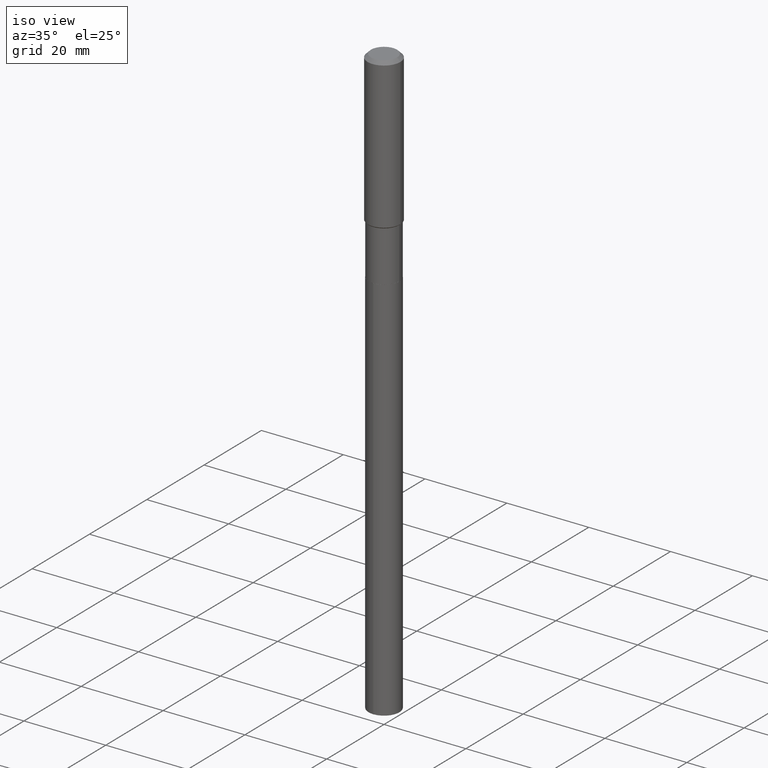
[diagram: clean part render]
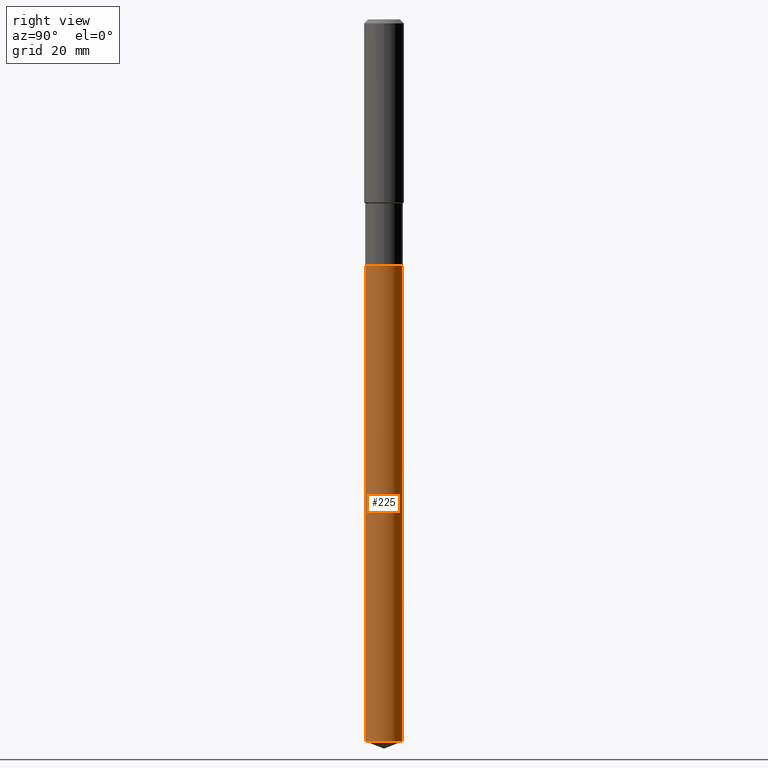
[diagram: tour spotlight — one face highlighted and labeled with its STEP entity id]
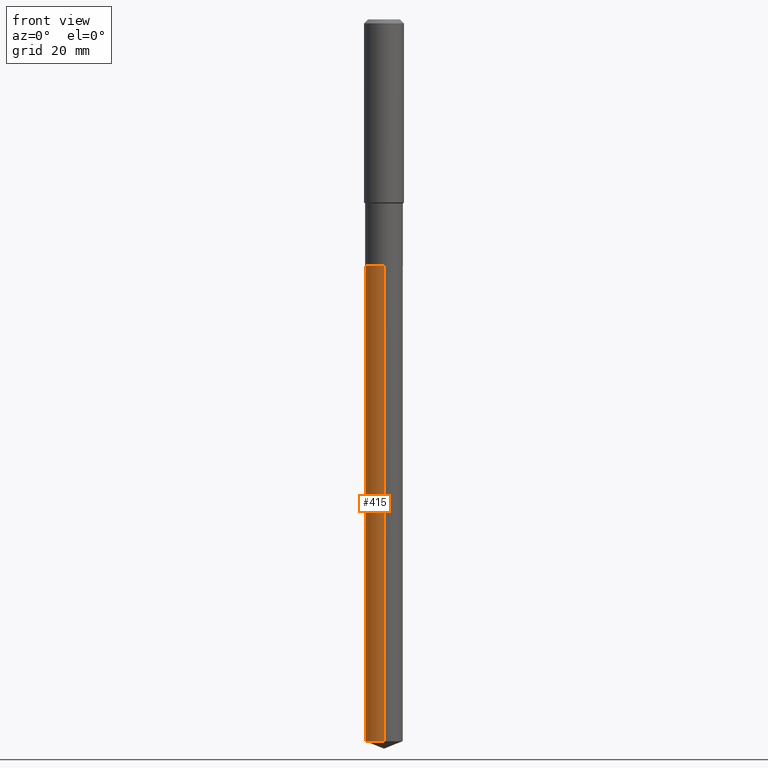
[diagram: tour spotlight — one face highlighted and labeled with its STEP entity id]
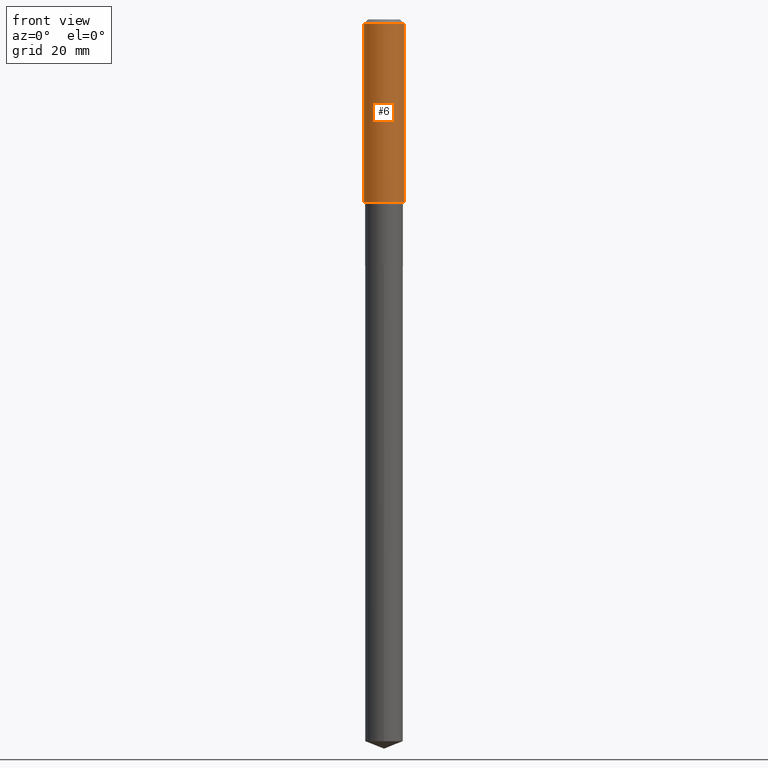
[diagram: tour spotlight — one face highlighted and labeled with its STEP entity id]
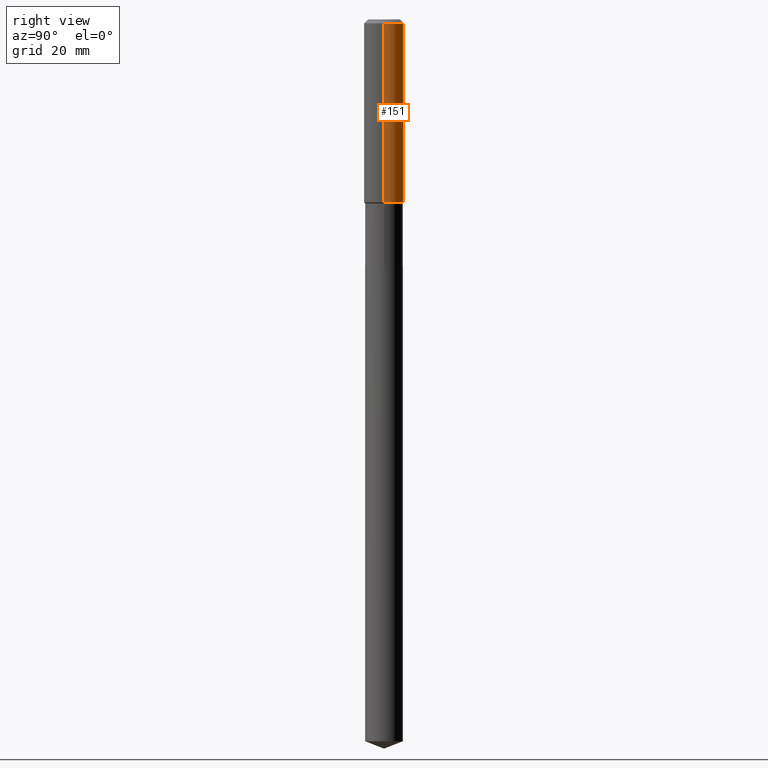
[diagram: tour spotlight — one face highlighted and labeled with its STEP entity id]
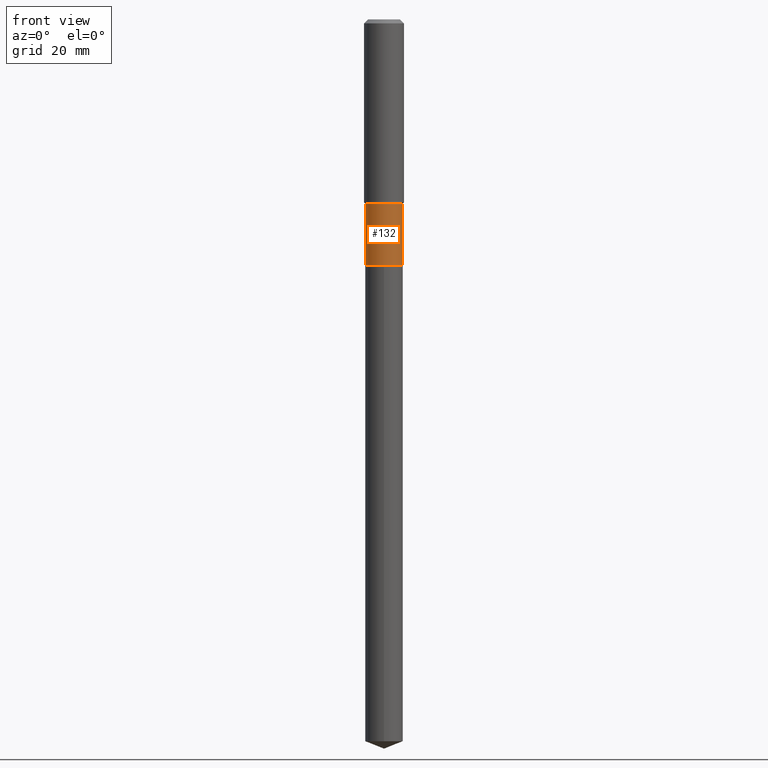
[diagram: tour spotlight — one face highlighted and labeled with its STEP entity id]
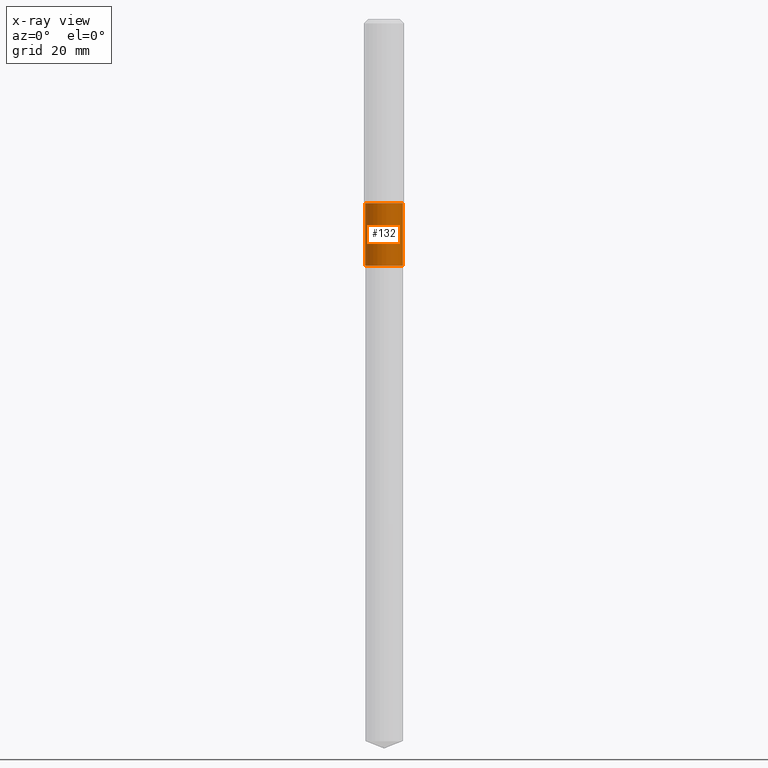
[diagram: x-ray of the same camera — body ghosted, this tour face saturated]
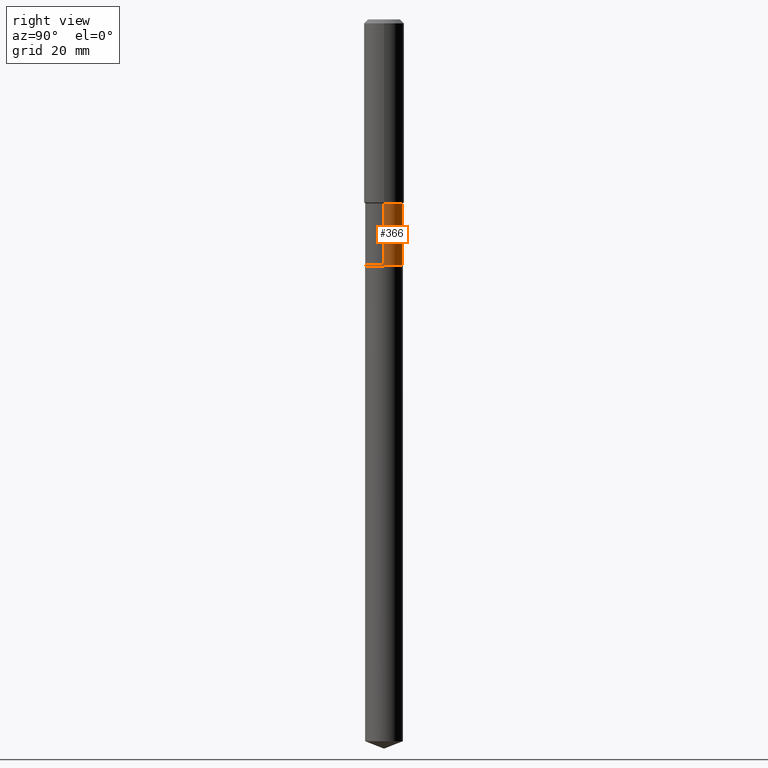
[diagram: tour spotlight — one face highlighted and labeled with its STEP entity id]
A machine part: a face-by-face anatomy tour. The part has 17 B-rep faces; the first image is the clean iso view, then the 6 largest visible faces are spotlighted one at a time (largest first), each with its STEP entity span.

Face 1 — right view, entity #225. In plain terms, the highlighted cylindrical surface (edge-blend (fillet) strip) has radius 3.7706 mm, axis along (-0, 0, 1).
Definition (entity closure, byte-faithful):
#5 = LINE ( 'NONE', #162, #69 ) ;
#16 = EDGE_CURVE ( 'NONE', #54, #122, #182, .T. ) ;
#38 = AXIS2_PLACEMENT_3D ( 'NONE', #63, #405, #412 ) ;
#45 = CARTESIAN_POINT ( 'NONE',  ( 1.054800691236008147E-15, 0.1484499999999931985, -1.941400000000000681 ) ) ;
#54 = VERTEX_POINT ( 'NONE', #118 ) ;
#63 = CARTESIAN_POINT ( 'NONE',  ( 4.747633140327824663E-29, -6.778361871230083058E-15, -1.941400000000000237 ) ) ;
#69 = VECTOR ( 'NONE', #409, 39.37007874015748143 ) ;
#75 = CARTESIAN_POINT ( 'NONE',  ( 1.054800691236008147E-15, 0.1484499999999801811, -5.689523989894962774 ) ) ;
#94 = EDGE_CURVE ( 'NONE', #122, #330, #5, .T. ) ;
#104 = EDGE_CURVE ( 'NONE', #482, #330, #354, .T. ) ;
#118 = CARTESIAN_POINT ( 'NONE',  ( -1.036620809502387253E-15, -0.1484500000000198716, -5.689523989894962774 ) ) ;
#120 = CARTESIAN_POINT ( 'NONE',  ( -1.036620809502478564E-15, -0.1484500000000067710, -1.941399999999999570 ) ) ;
#122 = VERTEX_POINT ( 'NONE', #75 ) ;
#127 = CARTESIAN_POINT ( 'NONE',  ( -1.036620809502478564E-15, -0.1484500000000067710, -1.941399999999999570 ) ) ;
#162 = CARTESIAN_POINT ( 'NONE',  ( 1.054800691235916048E-15, 0.1484499999999931985, -1.941400000000000681 ) ) ;
#164 = ORIENTED_EDGE ( 'NONE', *, *, #429, .F. ) ;
#167 = DIRECTION ( 'NONE',  ( -2.445564221112672413E-29, 3.491344699236233540E-15, 1.000000000000000000 ) ) ;
#182 = CIRCLE ( 'NONE', #230, 0.1484499999999999986 ) ;
#219 = DIRECTION ( 'NONE',  ( -6.982962677686265133E-15, -1.000000000000000000, 3.680495781292372402E-15 ) ) ;
#225 = ADVANCED_FACE ( 'NONE', ( #446 ), #307, .T. ) ;
#230 = AXIS2_PLACEMENT_3D ( 'NONE', #457, #167, #316 ) ;
#237 = ORIENTED_EDGE ( 'NONE', *, *, #94, .T. ) ;
#240 = LINE ( 'NONE', #120, #276 ) ;
#241 = AXIS2_PLACEMENT_3D ( 'NONE', #479, #333, #219 ) ;
#258 = ORIENTED_EDGE ( 'NONE', *, *, #16, .T. ) ;
#276 = VECTOR ( 'NONE', #398, 39.37007874015748143 ) ;
#307 = CYLINDRICAL_SURFACE ( 'NONE', #38, 0.1484499999999999986 ) ;
#316 = DIRECTION ( 'NONE',  ( -6.982962677686265133E-15, -1.000000000000000000, 0.000000000000000000 ) ) ;
#328 = EDGE_LOOP ( 'NONE', ( #258, #237, #336, #164 ) ) ;
#330 = VERTEX_POINT ( 'NONE', #45 ) ;
#333 = DIRECTION ( 'NONE',  ( -2.445564221112672413E-29, 3.491344699236233540E-15, 1.000000000000000000 ) ) ;
#336 = ORIENTED_EDGE ( 'NONE', *, *, #104, .F. ) ;
#354 = CIRCLE ( 'NONE', #241, 0.1484499999999999986 ) ;
#398 = DIRECTION ( 'NONE',  ( -2.445564221112672413E-29, 3.491344699236233540E-15, 1.000000000000000000 ) ) ;
#405 = DIRECTION ( 'NONE',  ( -2.445564221112672413E-29, 3.491344699236233540E-15, 1.000000000000000000 ) ) ;
#409 = DIRECTION ( 'NONE',  ( -2.445564221112672413E-29, 3.491344699236233540E-15, 1.000000000000000000 ) ) ;
#412 = DIRECTION ( 'NONE',  ( -6.982962677686265133E-15, -1.000000000000000000, 3.680495781292372402E-15 ) ) ;
#429 = EDGE_CURVE ( 'NONE', #54, #482, #240, .T. ) ;
#446 = FACE_OUTER_BOUND ( 'NONE', #328, .T. ) ;
#457 = CARTESIAN_POINT ( 'NONE',  ( 1.391391106630902087E-28, -1.986435469543002324E-14, -5.689523989894962774 ) ) ;
#479 = CARTESIAN_POINT ( 'NONE',  ( 4.747633140327824663E-29, -6.778361871230083058E-15, -1.941400000000000237 ) ) ;
#482 = VERTEX_POINT ( 'NONE', #127 ) ;

Face 2 — front view, entity #415. In plain terms, the highlighted cylindrical surface (edge-blend (fillet) strip) has radius 3.7706 mm, axis along (-0, 0, 1).
Definition (entity closure, byte-faithful):
#3 = ORIENTED_EDGE ( 'NONE', *, *, #459, .F. ) ;
#5 = LINE ( 'NONE', #162, #69 ) ;
#19 = ORIENTED_EDGE ( 'NONE', *, *, #94, .F. ) ;
#29 = AXIS2_PLACEMENT_3D ( 'NONE', #263, #255, #484 ) ;
#45 = CARTESIAN_POINT ( 'NONE',  ( 1.054800691236008147E-15, 0.1484499999999931985, -1.941400000000000681 ) ) ;
#54 = VERTEX_POINT ( 'NONE', #118 ) ;
#69 = VECTOR ( 'NONE', #409, 39.37007874015748143 ) ;
#75 = CARTESIAN_POINT ( 'NONE',  ( 1.054800691236008147E-15, 0.1484499999999801811, -5.689523989894962774 ) ) ;
#87 = DIRECTION ( 'NONE',  ( -6.982962677686265133E-15, -1.000000000000000000, 3.680495781292372402E-15 ) ) ;
#94 = EDGE_CURVE ( 'NONE', #122, #330, #5, .T. ) ;
#110 = CARTESIAN_POINT ( 'NONE',  ( 4.747633140327824663E-29, -6.778361871230083058E-15, -1.941400000000000237 ) ) ;
#118 = CARTESIAN_POINT ( 'NONE',  ( -1.036620809502387253E-15, -0.1484500000000198716, -5.689523989894962774 ) ) ;
#120 = CARTESIAN_POINT ( 'NONE',  ( -1.036620809502478564E-15, -0.1484500000000067710, -1.941399999999999570 ) ) ;
#122 = VERTEX_POINT ( 'NONE', #75 ) ;
#127 = CARTESIAN_POINT ( 'NONE',  ( -1.036620809502478564E-15, -0.1484500000000067710, -1.941399999999999570 ) ) ;
#162 = CARTESIAN_POINT ( 'NONE',  ( 1.054800691235916048E-15, 0.1484499999999931985, -1.941400000000000681 ) ) ;
#189 = EDGE_CURVE ( 'NONE', #122, #54, #308, .T. ) ;
#218 = DIRECTION ( 'NONE',  ( -2.445564221112672413E-29, 3.491344699236233540E-15, 1.000000000000000000 ) ) ;
#229 = DIRECTION ( 'NONE',  ( -2.445564221112672413E-29, 3.491344699236233540E-15, 1.000000000000000000 ) ) ;
#240 = LINE ( 'NONE', #120, #276 ) ;
#250 = ORIENTED_EDGE ( 'NONE', *, *, #189, .T. ) ;
#251 = DIRECTION ( 'NONE',  ( -6.982962677686265133E-15, -1.000000000000000000, 3.680495781292372402E-15 ) ) ;
#252 = ORIENTED_EDGE ( 'NONE', *, *, #429, .T. ) ;
#255 = DIRECTION ( 'NONE',  ( -2.445564221112672413E-29, 3.491344699236233540E-15, 1.000000000000000000 ) ) ;
#263 = CARTESIAN_POINT ( 'NONE',  ( 1.391391106630902087E-28, -1.986435469543002324E-14, -5.689523989894962774 ) ) ;
#266 = CIRCLE ( 'NONE', #334, 0.1484499999999999986 ) ;
#276 = VECTOR ( 'NONE', #398, 39.37007874015748143 ) ;
#284 = FACE_OUTER_BOUND ( 'NONE', #287, .T. ) ;
#287 = EDGE_LOOP ( 'NONE', ( #19, #250, #252, #3 ) ) ;
#308 = CIRCLE ( 'NONE', #29, 0.1484499999999999986 ) ;
#330 = VERTEX_POINT ( 'NONE', #45 ) ;
#334 = AXIS2_PLACEMENT_3D ( 'NONE', #434, #218, #251 ) ;
#358 = CYLINDRICAL_SURFACE ( 'NONE', #372, 0.1484499999999999986 ) ;
#372 = AXIS2_PLACEMENT_3D ( 'NONE', #110, #229, #87 ) ;
#398 = DIRECTION ( 'NONE',  ( -2.445564221112672413E-29, 3.491344699236233540E-15, 1.000000000000000000 ) ) ;
#409 = DIRECTION ( 'NONE',  ( -2.445564221112672413E-29, 3.491344699236233540E-15, 1.000000000000000000 ) ) ;
#415 = ADVANCED_FACE ( 'NONE', ( #284 ), #358, .T. ) ;
#429 = EDGE_CURVE ( 'NONE', #54, #482, #240, .T. ) ;
#434 = CARTESIAN_POINT ( 'NONE',  ( 4.747633140327824663E-29, -6.778361871230083058E-15, -1.941400000000000237 ) ) ;
#459 = EDGE_CURVE ( 'NONE', #330, #482, #266, .T. ) ;
#482 = VERTEX_POINT ( 'NONE', #127 ) ;
#484 = DIRECTION ( 'NONE',  ( -6.982962677686265133E-15, -1.000000000000000000, 0.000000000000000000 ) ) ;

Face 3 — front view, entity #6. In plain terms, the highlighted cylindrical surface (edge-blend (fillet) strip) has radius 4.0005 mm, axis along (-0, 0, 1).
Definition (entity closure, byte-faithful):
#2 = CYLINDRICAL_SURFACE ( 'NONE', #128, 0.1575000000000000844 ) ;
#4 = CARTESIAN_POINT ( 'NONE',  ( 0.1575000000000000844, -1.099816621735587677E-15, 7.679978421878603638E-30 ) ) ;
#6 = ADVANCED_FACE ( 'NONE', ( #163 ), #2, .T. ) ;
#7 = ORIENTED_EDGE ( 'NONE', *, *, #42, .F. ) ;
#31 = DIRECTION ( 'NONE',  ( -2.445468806185136597E-29, 3.491481338843145583E-15, 1.000000000000000000 ) ) ;
#37 = DIRECTION ( 'NONE',  ( 1.000000000000000000, -6.982962677686267499E-15, 0.000000000000000000 ) ) ;
#39 = AXIS2_PLACEMENT_3D ( 'NONE', #487, #362, #361 ) ;
#40 = CARTESIAN_POINT ( 'NONE',  ( -0.1575000000000001676, -3.917182448392135652E-15, -1.442449999999999788 ) ) ;
#42 = EDGE_CURVE ( 'NONE', #370, #430, #159, .T. ) ;
#95 = VERTEX_POINT ( 'NONE', #184 ) ;
#98 = VECTOR ( 'NONE', #116, 39.37007874015748143 ) ;
#107 = CARTESIAN_POINT ( 'NONE',  ( 0.1575000000000000011, -1.209798283909146741E-15, -0.03150000000000019451 ) ) ;
#116 = DIRECTION ( 'NONE',  ( -2.445468806185136877E-29, 3.491481338843145188E-15, 1.000000000000000000 ) ) ;
#125 = DIRECTION ( 'NONE',  ( -2.445468806185136877E-29, 3.491481338843145188E-15, 1.000000000000000000 ) ) ;
#128 = AXIS2_PLACEMENT_3D ( 'NONE', #285, #390, #157 ) ;
#144 = CARTESIAN_POINT ( 'NONE',  ( 3.527466479481750238E-29, -5.036287257214294044E-15, -1.442449999999999788 ) ) ;
#157 = DIRECTION ( 'NONE',  ( 1.000000000000000000, -6.982962677686267499E-15, 4.876176775795936353E-29 ) ) ;
#159 = LINE ( 'NONE', #490, #98 ) ;
#163 = FACE_OUTER_BOUND ( 'NONE', #203, .T. ) ;
#184 = CARTESIAN_POINT ( 'NONE',  ( 0.1575000000000001676, -6.136103878949882313E-15, -1.442449999999999788 ) ) ;
#186 = ORIENTED_EDGE ( 'NONE', *, *, #344, .F. ) ;
#188 = VERTEX_POINT ( 'NONE', #107 ) ;
#195 = EDGE_CURVE ( 'NONE', #370, #95, #280, .T. ) ;
#203 = EDGE_LOOP ( 'NONE', ( #7, #277, #373, #186 ) ) ;
#207 = VECTOR ( 'NONE', #125, 39.37007874015748143 ) ;
#277 = ORIENTED_EDGE ( 'NONE', *, *, #195, .T. ) ;
#280 = CIRCLE ( 'NONE', #332, 0.1575000000000001676 ) ;
#282 = CARTESIAN_POINT ( 'NONE',  ( -0.1575000000000000011, -1.454029650871768556E-15, -0.03150000000000019451 ) ) ;
#285 = CARTESIAN_POINT ( 'NONE',  ( 0.000000000000000000, 0.000000000000000000, 0.000000000000000000 ) ) ;
#319 = EDGE_CURVE ( 'NONE', #95, #188, #453, .T. ) ;
#332 = AXIS2_PLACEMENT_3D ( 'NONE', #144, #31, #37 ) ;
#344 = EDGE_CURVE ( 'NONE', #430, #188, #355, .T. ) ;
#355 = CIRCLE ( 'NONE', #39, 0.1575000000000000011 ) ;
#361 = DIRECTION ( 'NONE',  ( 1.000000000000000000, -6.982962677686265922E-15, 0.000000000000000000 ) ) ;
#362 = DIRECTION ( 'NONE',  ( -2.445468806185136597E-29, 3.491481338843145583E-15, 1.000000000000000000 ) ) ;
#370 = VERTEX_POINT ( 'NONE', #40 ) ;
#373 = ORIENTED_EDGE ( 'NONE', *, *, #319, .T. ) ;
#390 = DIRECTION ( 'NONE',  ( -2.445468806185136597E-29, 3.491481338843145583E-15, 1.000000000000000000 ) ) ;
#430 = VERTEX_POINT ( 'NONE', #282 ) ;
#453 = LINE ( 'NONE', #4, #207 ) ;
#487 = CARTESIAN_POINT ( 'NONE',  ( 7.703226739483228723E-31, -1.099816621735597661E-16, -0.03150000000000019451 ) ) ;
#490 = CARTESIAN_POINT ( 'NONE',  ( -0.1575000000000000844, 1.119104808822158392E-15, -7.747322767151481189E-30 ) ) ;

Face 4 — right view, entity #151. In plain terms, the highlighted cylindrical surface (edge-blend (fillet) strip) has radius 4.0005 mm, axis along (-0, 0, 1).
Definition (entity closure, byte-faithful):
#4 = CARTESIAN_POINT ( 'NONE',  ( 0.1575000000000000844, -1.099816621735587677E-15, 7.679978421878603638E-30 ) ) ;
#13 = ORIENTED_EDGE ( 'NONE', *, *, #294, .F. ) ;
#40 = CARTESIAN_POINT ( 'NONE',  ( -0.1575000000000001676, -3.917182448392135652E-15, -1.442449999999999788 ) ) ;
#42 = EDGE_CURVE ( 'NONE', #370, #430, #159, .T. ) ;
#65 = FACE_OUTER_BOUND ( 'NONE', #335, .T. ) ;
#84 = ORIENTED_EDGE ( 'NONE', *, *, #319, .F. ) ;
#90 = AXIS2_PLACEMENT_3D ( 'NONE', #427, #272, #397 ) ;
#95 = VERTEX_POINT ( 'NONE', #184 ) ;
#98 = VECTOR ( 'NONE', #116, 39.37007874015748143 ) ;
#100 = ORIENTED_EDGE ( 'NONE', *, *, #42, .T. ) ;
#107 = CARTESIAN_POINT ( 'NONE',  ( 0.1575000000000000011, -1.209798283909146741E-15, -0.03150000000000019451 ) ) ;
#116 = DIRECTION ( 'NONE',  ( -2.445468806185136877E-29, 3.491481338843145188E-15, 1.000000000000000000 ) ) ;
#125 = DIRECTION ( 'NONE',  ( -2.445468806185136877E-29, 3.491481338843145188E-15, 1.000000000000000000 ) ) ;
#151 = ADVANCED_FACE ( 'NONE', ( #65 ), #380, .T. ) ;
#155 = CIRCLE ( 'NONE', #90, 0.1575000000000000011 ) ;
#159 = LINE ( 'NONE', #490, #98 ) ;
#184 = CARTESIAN_POINT ( 'NONE',  ( 0.1575000000000001676, -6.136103878949882313E-15, -1.442449999999999788 ) ) ;
#188 = VERTEX_POINT ( 'NONE', #107 ) ;
#192 = AXIS2_PLACEMENT_3D ( 'NONE', #388, #353, #489 ) ;
#207 = VECTOR ( 'NONE', #125, 39.37007874015748143 ) ;
#224 = DIRECTION ( 'NONE',  ( -2.445468806185136597E-29, 3.491481338843145583E-15, 1.000000000000000000 ) ) ;
#272 = DIRECTION ( 'NONE',  ( -2.445468806185136597E-29, 3.491481338843145583E-15, 1.000000000000000000 ) ) ;
#282 = CARTESIAN_POINT ( 'NONE',  ( -0.1575000000000000011, -1.454029650871768556E-15, -0.03150000000000019451 ) ) ;
#294 = EDGE_CURVE ( 'NONE', #188, #430, #155, .T. ) ;
#315 = CIRCLE ( 'NONE', #192, 0.1575000000000001676 ) ;
#319 = EDGE_CURVE ( 'NONE', #95, #188, #453, .T. ) ;
#335 = EDGE_LOOP ( 'NONE', ( #346, #100, #13, #84 ) ) ;
#340 = CARTESIAN_POINT ( 'NONE',  ( 0.000000000000000000, 0.000000000000000000, 0.000000000000000000 ) ) ;
#346 = ORIENTED_EDGE ( 'NONE', *, *, #450, .T. ) ;
#353 = DIRECTION ( 'NONE',  ( -2.445468806185136597E-29, 3.491481338843145583E-15, 1.000000000000000000 ) ) ;
#370 = VERTEX_POINT ( 'NONE', #40 ) ;
#376 = DIRECTION ( 'NONE',  ( 1.000000000000000000, -6.982962677686267499E-15, 4.876176775795936353E-29 ) ) ;
#380 = CYLINDRICAL_SURFACE ( 'NONE', #468, 0.1575000000000000844 ) ;
#388 = CARTESIAN_POINT ( 'NONE',  ( 3.527466479481750238E-29, -5.036287257214294044E-15, -1.442449999999999788 ) ) ;
#397 = DIRECTION ( 'NONE',  ( 1.000000000000000000, -6.982962677686265922E-15, 0.000000000000000000 ) ) ;
#427 = CARTESIAN_POINT ( 'NONE',  ( 7.703226739483228723E-31, -1.099816621735597661E-16, -0.03150000000000019451 ) ) ;
#430 = VERTEX_POINT ( 'NONE', #282 ) ;
#450 = EDGE_CURVE ( 'NONE', #95, #370, #315, .T. ) ;
#453 = LINE ( 'NONE', #4, #207 ) ;
#468 = AXIS2_PLACEMENT_3D ( 'NONE', #340, #224, #376 ) ;
#489 = DIRECTION ( 'NONE',  ( 1.000000000000000000, -6.982962677686267499E-15, 0.000000000000000000 ) ) ;
#490 = CARTESIAN_POINT ( 'NONE',  ( -0.1575000000000000844, 1.119104808822158392E-15, -7.747322767151481189E-30 ) ) ;

Face 5 — front view, entity #132. An x-ray twin of the same camera follows (body ghosted, this face saturated) — the face is partly hidden behind the body. In plain terms, the highlighted cylindrical surface (edge-blend (fillet) strip) has radius 3.7706 mm, axis along (-0, 0, 1).
Definition (entity closure, byte-faithful):
#33 = ORIENTED_EDGE ( 'NONE', *, *, #126, .T. ) ;
#44 = VERTEX_POINT ( 'NONE', #318 ) ;
#46 = DIRECTION ( 'NONE',  ( -2.445468806185136877E-29, 3.491481338843145188E-15, 1.000000000000000000 ) ) ;
#59 = VECTOR ( 'NONE', #303, 39.37007874015748143 ) ;
#66 = CARTESIAN_POINT ( 'NONE',  ( 0.000000000000000000, 0.000000000000000000, 0.000000000000000000 ) ) ;
#76 = ORIENTED_EDGE ( 'NONE', *, *, #106, .F. ) ;
#83 = EDGE_CURVE ( 'NONE', #310, #44, #236, .T. ) ;
#92 = DIRECTION ( 'NONE',  ( 1.000000000000000000, -6.982962677686264344E-15, 0.000000000000000000 ) ) ;
#97 = CYLINDRICAL_SURFACE ( 'NONE', #448, 0.1484499999999999431 ) ;
#101 = CARTESIAN_POINT ( 'NONE',  ( 3.549597972177726133E-29, -5.067885163330826020E-15, -1.451500000000000012 ) ) ;
#102 = DIRECTION ( 'NONE',  ( -2.445468806185136597E-29, 3.491481338843145583E-15, 1.000000000000000000 ) ) ;
#106 = EDGE_CURVE ( 'NONE', #44, #248, #196, .T. ) ;
#124 = CARTESIAN_POINT ( 'NONE',  ( 4.746410405924732422E-29, -6.776616130560662344E-15, -1.940900000000000292 ) ) ;
#126 = EDGE_CURVE ( 'NONE', #310, #292, #460, .T. ) ;
#132 = ADVANCED_FACE ( 'NONE', ( #305 ), #97, .T. ) ;
#136 = CARTESIAN_POINT ( 'NONE',  ( 0.1484499999999999986, -7.813236940063189028E-15, -1.940900000000000292 ) ) ;
#146 = EDGE_CURVE ( 'NONE', #292, #248, #268, .T. ) ;
#174 = ORIENTED_EDGE ( 'NONE', *, *, #83, .F. ) ;
#196 = CIRCLE ( 'NONE', #265, 0.1484499999999999431 ) ;
#228 = CARTESIAN_POINT ( 'NONE',  ( 0.1484499999999999431, -6.104505972833351915E-15, -1.451500000000000012 ) ) ;
#236 = LINE ( 'NONE', #394, #274 ) ;
#248 = VERTEX_POINT ( 'NONE', #228 ) ;
#265 = AXIS2_PLACEMENT_3D ( 'NONE', #101, #471, #92 ) ;
#268 = LINE ( 'NONE', #300, #59 ) ;
#274 = VECTOR ( 'NONE', #46, 39.37007874015748143 ) ;
#292 = VERTEX_POINT ( 'NONE', #136 ) ;
#295 = DIRECTION ( 'NONE',  ( 1.000000000000000000, -6.982962677686266711E-15, 4.876176775795936353E-29 ) ) ;
#300 = CARTESIAN_POINT ( 'NONE',  ( 0.1484499999999999431, -1.036620809502525896E-15, 7.238684423669065009E-30 ) ) ;
#303 = DIRECTION ( 'NONE',  ( -2.445468806185136877E-29, 3.491481338843145188E-15, 1.000000000000000000 ) ) ;
#305 = FACE_OUTER_BOUND ( 'NONE', #462, .T. ) ;
#310 = VERTEX_POINT ( 'NONE', #350 ) ;
#318 = CARTESIAN_POINT ( 'NONE',  ( -0.1484499999999999431, -4.867449955709876057E-15, -1.451500000000000012 ) ) ;
#350 = CARTESIAN_POINT ( 'NONE',  ( -0.1484499999999999986, -4.867449955709874479E-15, -1.940900000000000292 ) ) ;
#394 = CARTESIAN_POINT ( 'NONE',  ( -0.1484499999999999431, 1.054800691235868322E-15, -7.302159141483405952E-30 ) ) ;
#403 = AXIS2_PLACEMENT_3D ( 'NONE', #124, #102, #481 ) ;
#439 = DIRECTION ( 'NONE',  ( -2.445468806185136597E-29, 3.491481338843145583E-15, 1.000000000000000000 ) ) ;
#448 = AXIS2_PLACEMENT_3D ( 'NONE', #66, #439, #295 ) ;
#452 = ORIENTED_EDGE ( 'NONE', *, *, #146, .T. ) ;
#460 = CIRCLE ( 'NONE', #403, 0.1484499999999999986 ) ;
#462 = EDGE_LOOP ( 'NONE', ( #174, #33, #452, #76 ) ) ;
#471 = DIRECTION ( 'NONE',  ( -2.445468806185136597E-29, 3.491481338843145583E-15, 1.000000000000000000 ) ) ;
#481 = DIRECTION ( 'NONE',  ( 1.000000000000000000, -6.982962677686268288E-15, 0.000000000000000000 ) ) ;

Face 6 — right view, entity #366. In plain terms, the highlighted cylindrical surface (edge-blend (fillet) strip) has radius 3.7706 mm, axis along (-0, 0, 1).
Definition (entity closure, byte-faithful):
#10 = AXIS2_PLACEMENT_3D ( 'NONE', #73, #374, #181 ) ;
#11 = CIRCLE ( 'NONE', #115, 0.1484499999999999986 ) ;
#18 = ORIENTED_EDGE ( 'NONE', *, *, #83, .T. ) ;
#35 = ORIENTED_EDGE ( 'NONE', *, *, #435, .T. ) ;
#44 = VERTEX_POINT ( 'NONE', #318 ) ;
#46 = DIRECTION ( 'NONE',  ( -2.445468806185136877E-29, 3.491481338843145188E-15, 1.000000000000000000 ) ) ;
#49 = ORIENTED_EDGE ( 'NONE', *, *, #146, .F. ) ;
#59 = VECTOR ( 'NONE', #303, 39.37007874015748143 ) ;
#73 = CARTESIAN_POINT ( 'NONE',  ( 3.549597972177726133E-29, -5.067885163330826020E-15, -1.451500000000000012 ) ) ;
#79 = DIRECTION ( 'NONE',  ( 1.000000000000000000, -6.982962677686268288E-15, 0.000000000000000000 ) ) ;
#83 = EDGE_CURVE ( 'NONE', #310, #44, #236, .T. ) ;
#113 = DIRECTION ( 'NONE',  ( 1.000000000000000000, -6.982962677686266711E-15, 4.876176775795936353E-29 ) ) ;
#115 = AXIS2_PLACEMENT_3D ( 'NONE', #269, #416, #79 ) ;
#136 = CARTESIAN_POINT ( 'NONE',  ( 0.1484499999999999986, -7.813236940063189028E-15, -1.940900000000000292 ) ) ;
#146 = EDGE_CURVE ( 'NONE', #292, #248, #268, .T. ) ;
#181 = DIRECTION ( 'NONE',  ( 1.000000000000000000, -6.982962677686264344E-15, 0.000000000000000000 ) ) ;
#204 = CYLINDRICAL_SURFACE ( 'NONE', #477, 0.1484499999999999431 ) ;
#206 = CIRCLE ( 'NONE', #10, 0.1484499999999999431 ) ;
#228 = CARTESIAN_POINT ( 'NONE',  ( 0.1484499999999999431, -6.104505972833351915E-15, -1.451500000000000012 ) ) ;
#236 = LINE ( 'NONE', #394, #274 ) ;
#239 = FACE_OUTER_BOUND ( 'NONE', #338, .T. ) ;
#244 = EDGE_CURVE ( 'NONE', #248, #44, #206, .T. ) ;
#248 = VERTEX_POINT ( 'NONE', #228 ) ;
#268 = LINE ( 'NONE', #300, #59 ) ;
#269 = CARTESIAN_POINT ( 'NONE',  ( 4.746410405924732422E-29, -6.776616130560662344E-15, -1.940900000000000292 ) ) ;
#274 = VECTOR ( 'NONE', #46, 39.37007874015748143 ) ;
#292 = VERTEX_POINT ( 'NONE', #136 ) ;
#300 = CARTESIAN_POINT ( 'NONE',  ( 0.1484499999999999431, -1.036620809502525896E-15, 7.238684423669065009E-30 ) ) ;
#303 = DIRECTION ( 'NONE',  ( -2.445468806185136877E-29, 3.491481338843145188E-15, 1.000000000000000000 ) ) ;
#310 = VERTEX_POINT ( 'NONE', #350 ) ;
#318 = CARTESIAN_POINT ( 'NONE',  ( -0.1484499999999999431, -4.867449955709876057E-15, -1.451500000000000012 ) ) ;
#327 = CARTESIAN_POINT ( 'NONE',  ( 0.000000000000000000, 0.000000000000000000, 0.000000000000000000 ) ) ;
#338 = EDGE_LOOP ( 'NONE', ( #35, #18, #440, #49 ) ) ;
#350 = CARTESIAN_POINT ( 'NONE',  ( -0.1484499999999999986, -4.867449955709874479E-15, -1.940900000000000292 ) ) ;
#366 = ADVANCED_FACE ( 'NONE', ( #239 ), #204, .T. ) ;
#374 = DIRECTION ( 'NONE',  ( -2.445468806185136597E-29, 3.491481338843145583E-15, 1.000000000000000000 ) ) ;
#394 = CARTESIAN_POINT ( 'NONE',  ( -0.1484499999999999431, 1.054800691235868322E-15, -7.302159141483405952E-30 ) ) ;
#396 = DIRECTION ( 'NONE',  ( -2.445468806185136597E-29, 3.491481338843145583E-15, 1.000000000000000000 ) ) ;
#416 = DIRECTION ( 'NONE',  ( -2.445468806185136597E-29, 3.491481338843145583E-15, 1.000000000000000000 ) ) ;
#435 = EDGE_CURVE ( 'NONE', #292, #310, #11, .T. ) ;
#440 = ORIENTED_EDGE ( 'NONE', *, *, #244, .F. ) ;
#477 = AXIS2_PLACEMENT_3D ( 'NONE', #327, #396, #113 ) ;